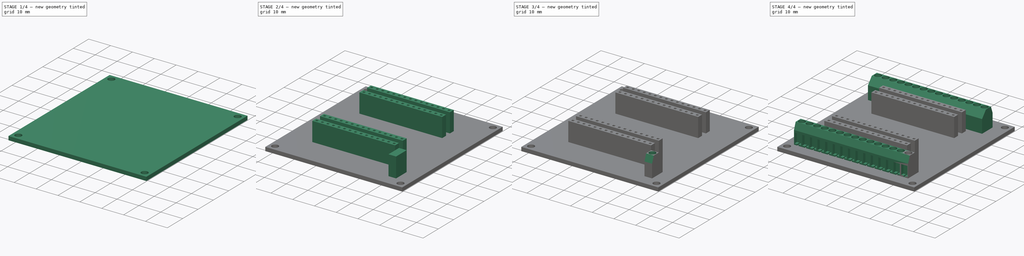
[diagram: build sequence overview — one tinted view per stage of 4, left to right]
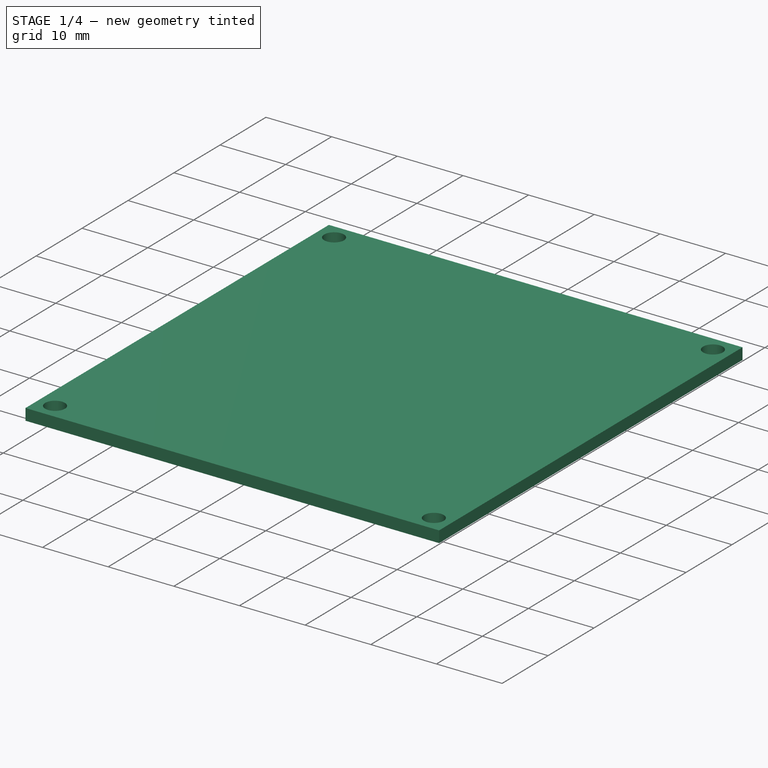
[diagram: stage 1 of 4 — iso view after this stage's code; geometry added in this stage tinted green]
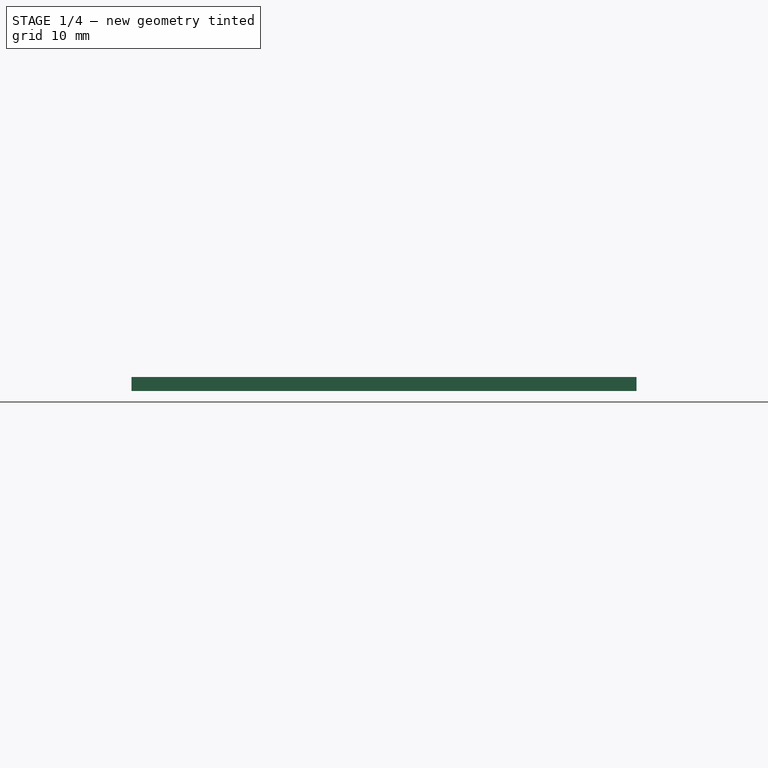
[diagram: stage 1 of 4 — front view after this stage's code; geometry added in this stage tinted green]
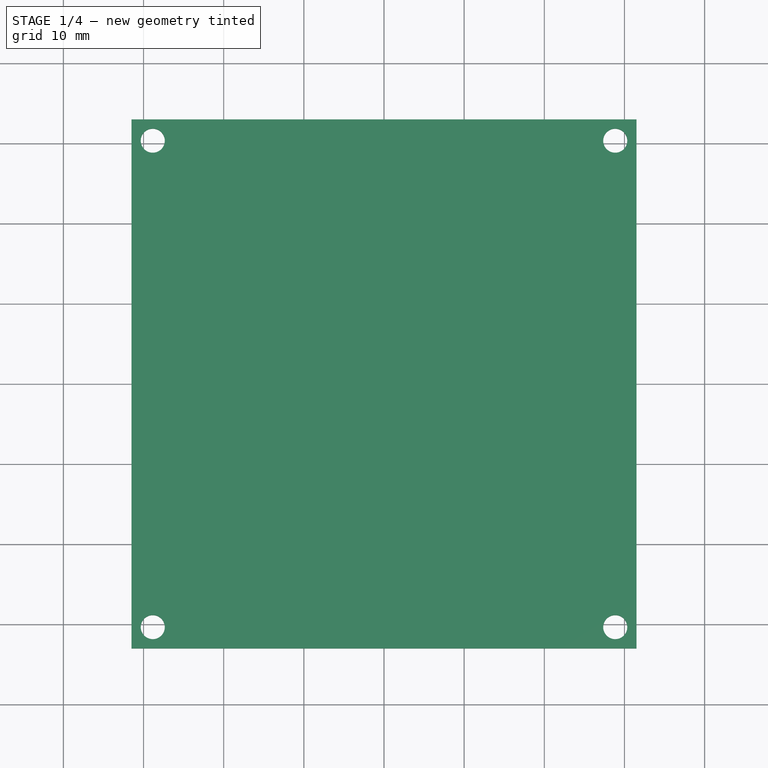
[diagram: stage 1 of 4 — top view after this stage's code; geometry added in this stage tinted green]
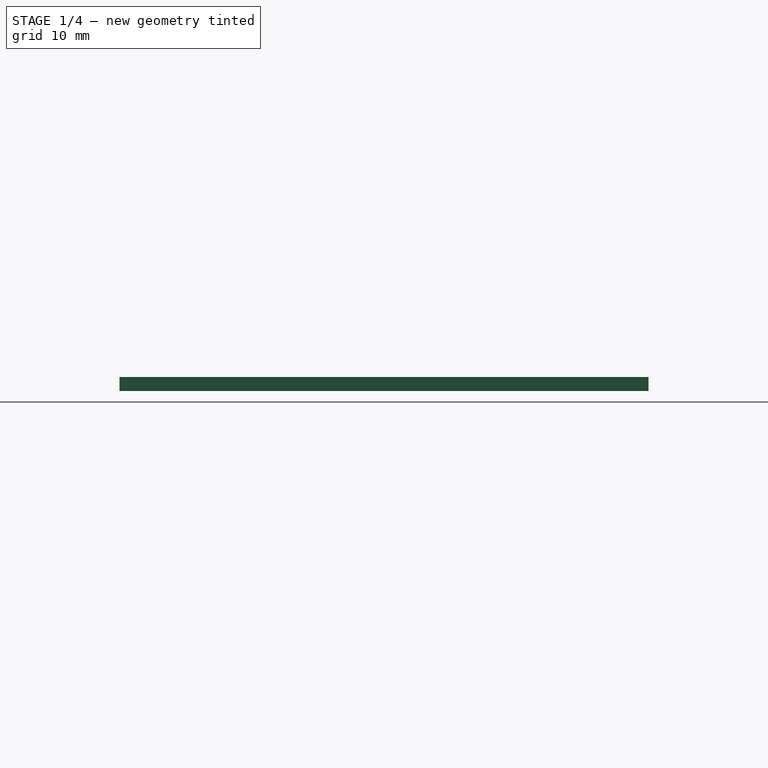
[diagram: stage 1 of 4 — right view after this stage's code; geometry added in this stage tinted green]
FCSTD DOCUMENT  (FreeCAD 1.0R39109 (Git))
Label: esp32_adapter
License: All rights reserved
LicenseURL: http://en.wikipedia.org/wiki/All_rights_reserved
objects: Sketcher::SketchObject×8, PartDesign::Pocket×5, PartDesign::Pad×3, PartDesign::LinearPattern×3, PartDesign::Mirrored×2, PartDesign::MultiTransform×2, PartDesign::Body×1
note: 55 computed .brp shape members not serialized (recipe doc carries the construction recipe); baked Part::Feature solids carry a one-line shape summary decoded from their .brp

FEATURE [Sketcher::SketchObject] Sketch
  ArcFitTolerance = 1e-06
  AttachmentSupport = -> [XY_Plane]
  FullyConstrained = true
  MakeInternals = false
  MapMode = 5
  sketch-geometry (5):
    g0: LineSegment StartX=-31.5 StartY=33 StartZ=0 EndX=-31.5 EndY=-33 EndZ=0
    g1: LineSegment StartX=-31.5 StartY=-33 StartZ=0 EndX=31.5 EndY=-33 EndZ=0
    g2: LineSegment StartX=31.5 StartY=-33 StartZ=0 EndX=31.5 EndY=33 EndZ=0
    g3: LineSegment StartX=31.5 StartY=33 StartZ=0 EndX=-31.5 EndY=33 EndZ=0
    g4: GeomPoint [constr] X=0 Y=0 Z=0
  constraints (12):
    c: Coincident(g0,g1)
    c: Coincident(g1,g2)
    c: Coincident(g2,g3)
    c: Coincident(g3,g0)
    c: Vertical(g0)
    c: Vertical(g2)
    c: Horizontal(g1)
    c: Horizontal(g3)
    c: Symmetric(g2,g0,g4)
    c: Coincident(g4,g-1)
    c: DistanceY(g2,g2) = 66
    c: DistanceX(g1,g1) = 63
FEATURE [PartDesign::Pad] Pad  label="PCBPad"
  Direction = (0,0,1)
  Length = 1.75
  Length2 = 10
  Profile = -> Sketch
  ReferenceAxis = -> Sketch [N_Axis]
  Refine = true
  Suppressed = false
  Type = 0
FEATURE [Sketcher::SketchObject] Sketch001
  ArcFitTolerance = 1e-06
  AttachmentSupport = -> [Pad]
  FullyConstrained = true
  MakeInternals = false
  MapMode = 5
  Placement = pos=(0,0,1.75) rot=(0,0,1;0rad)
  sketch-geometry (8):
    g0: Circle CenterX=-28.85 CenterY=30.35 CenterZ=0 NormalX=0 NormalY=0 NormalZ=1 AngleXU=0 Radius=1.5
    g1: Circle CenterX=28.85 CenterY=30.35 CenterZ=0 NormalX=0 NormalY=0 NormalZ=1 AngleXU=0 Radius=1.5
    g2: Circle CenterX=-28.85 CenterY=-30.35 CenterZ=0 NormalX=0 NormalY=0 NormalZ=1 AngleXU=0 Radius=1.5
    g3: Circle CenterX=28.85 CenterY=-30.35 CenterZ=0 NormalX=0 NormalY=0 NormalZ=1 AngleXU=0 Radius=1.5
    g4: GeomPoint X=27.35 Y=30.35 Z=0
    g5: GeomPoint X=-27.35 Y=30.35 Z=0
    g6: GeomPoint X=28.85 Y=-28.85 Z=0
    g7: GeomPoint X=28.85 Y=28.85 Z=0
  constraints (18):
    c: Equal(g0,g2)
    c: Equal(g2,g1)
    c: Equal(g1,g3)
    c: Radius(g3) = 1.5
    c: Symmetric(g2,g3,g-2)
    c: Symmetric(g2,g0,g-1)
    c: Horizontal(g0,g1)
    c: Vertical(g3,g1)
    c: PointOnObject(g4,g1)
    c: PointOnObject(g5,g0)
    c: Horizontal(g0,g5)
    c: Horizontal(g5,g4)
    c: DistanceX(g5,g4) = 54.7
    c: PointOnObject(g6,g3)
    c: PointOnObject(g7,g1)
    c: Vertical(g7,g6)
    c: Vertical(g6,g3)
    c: DistanceY(g6,g7) = 57.7
FEATURE [PartDesign::Pocket] Pocket  label="ScrewPads"
  BaseFeature = -> Pad
  Direction = (0,0,-1)
  Length = 0
  Length2 = 5
  Profile = -> Sketch001
  ReferenceAxis = -> Sketch001 [N_Axis]
  Refine = true
  Suppressed = false
  Type = 1
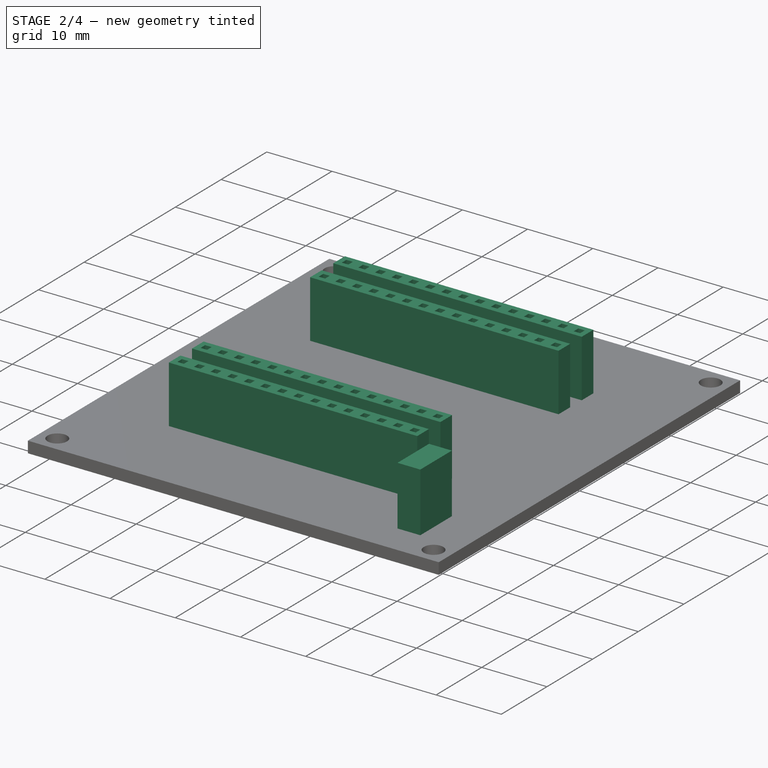
[diagram: stage 2 of 4 — iso view after this stage's code; geometry added in this stage tinted green]
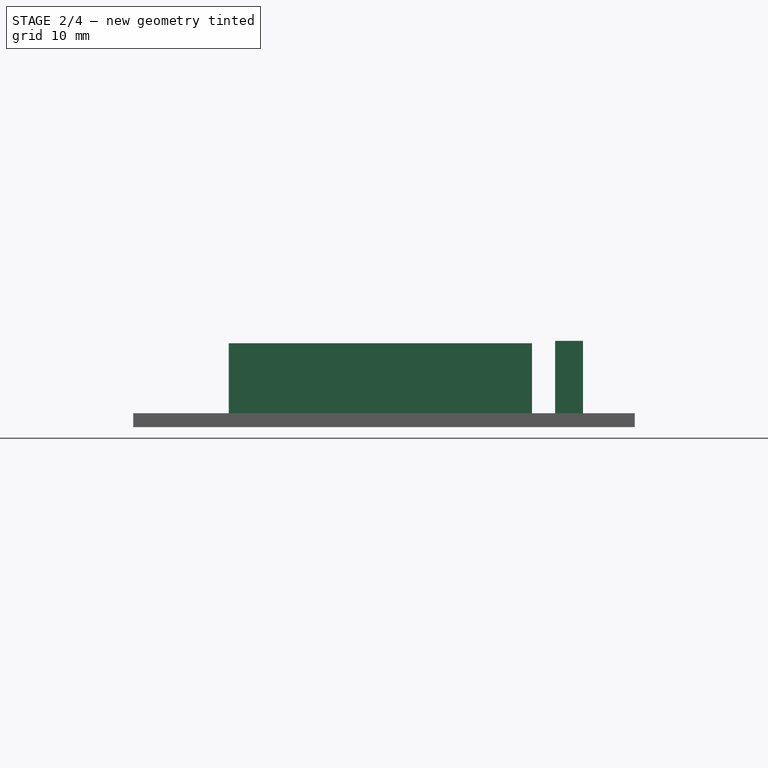
[diagram: stage 2 of 4 — front view after this stage's code; geometry added in this stage tinted green]
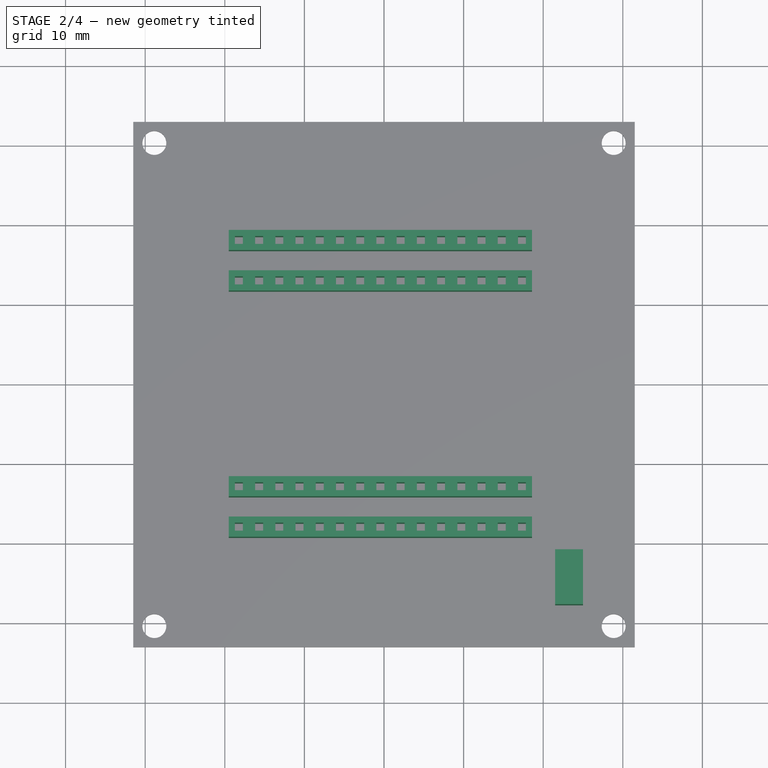
[diagram: stage 2 of 4 — top view after this stage's code; geometry added in this stage tinted green]
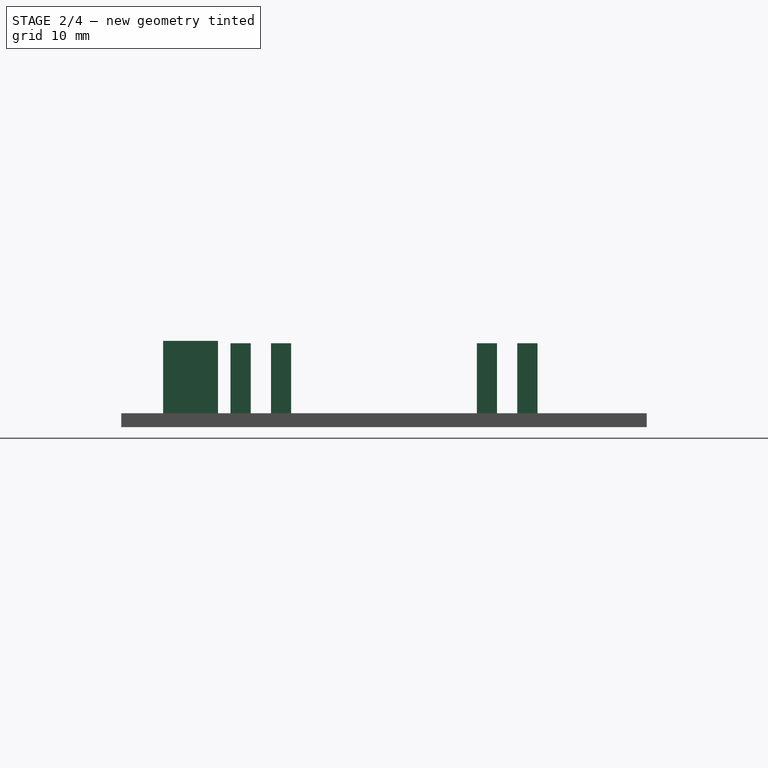
[diagram: stage 2 of 4 — right view after this stage's code; geometry added in this stage tinted green]
FEATURE [Sketcher::SketchObject] Sketch002
  ArcFitTolerance = 1e-06
  AttachmentSupport = -> [Pocket]
  ExternalGeometry = -> [Pocket]
  FullyConstrained = true
  MakeInternals = false
  MapMode = 5
  Placement = pos=(0,0,1.75) rot=(0,0,1;0rad)
  sketch-geometry (10):
    g0: LineSegment StartX=-19.5 StartY=14.2 StartZ=0 EndX=-19.5 EndY=11.66 EndZ=0
    g1: LineSegment StartX=-19.5 StartY=11.66 StartZ=0 EndX=-16.96 EndY=11.66 EndZ=0
    g2: LineSegment StartX=-16.96 StartY=11.66 StartZ=0 EndX=-16.96 EndY=14.2 EndZ=0
    g3: LineSegment StartX=-16.96 StartY=14.2 StartZ=0 EndX=-19.5 EndY=14.2 EndZ=0
    g4: GeomPoint [constr] X=-18.23 Y=12.93 Z=0
    g5: LineSegment StartX=-18.73 StartY=13.43 StartZ=0 EndX=-18.73 EndY=12.43 EndZ=0
    g6: LineSegment StartX=-18.73 StartY=12.43 StartZ=0 EndX=-17.73 EndY=12.43 EndZ=0
    g7: LineSegment StartX=-17.73 StartY=12.43 StartZ=0 EndX=-17.73 EndY=13.43 EndZ=0
    g8: LineSegment StartX=-17.73 StartY=13.43 StartZ=0 EndX=-18.73 EndY=13.43 EndZ=0
    g9: GeomPoint [constr] X=-18.23 Y=12.93 Z=0
  constraints (25):
    c: Coincident(g0,g1)
    c: Coincident(g1,g2)
    c: Coincident(g2,g3)
    c: Coincident(g3,g0)
    c: Vertical(g0)
    c: Vertical(g2)
    c: Horizontal(g1)
    c: Horizontal(g3)
    c: Symmetric(g2,g0,g4)
    c: Coincident(g5,g6)
    c: Coincident(g6,g7)
    c: Coincident(g7,g8)
    c: Coincident(g8,g5)
    c: Vertical(g5)
    c: Vertical(g7)
    c: Horizontal(g6)
    c: Horizontal(g8)
    c: Symmetric(g7,g5,g9)
    c: Coincident(g9,g4)
    c: Equal(g2,g3)
    c: Equal(g7,g8)
    c: DistanceY(g2,g2) = 2.54
    c: DistanceY(g7,g7) = 1
    c: DistanceX(g-3,g0) = 12
    c: DistanceY(g0,g-3) = 18.8
FEATURE [PartDesign::Pad] Pad001  label="GPIOConnPad"
  BaseFeature = -> Pocket
  Direction = (0,0,1)
  Length = 8.8
  Length2 = 10
  Profile = -> Sketch002
  ReferenceAxis = -> Sketch002 [N_Axis]
  Refine = true
  Suppressed = false
  Type = 0
FEATURE [PartDesign::LinearPattern] LinearPattern
  Direction = -> X_Axis
  Length = 35.56
  Mode = 1
  Occurrences = 15
  Offset = 2.54
  Refine = true
  Suppressed = false
  TransformMode = 0
FEATURE [PartDesign::LinearPattern] LinearPattern001
  Direction = -> Y_Axis
  Length = 5.08
  Mode = 1
  Occurrences = 2
  Offset = 5.08
  Refine = true
  Suppressed = false
  TransformMode = 0
FEATURE [PartDesign::Mirrored] Mirrored
  MirrorPlane = -> XZ_Plane
  Refine = true
  Suppressed = false
  TransformMode = 0
FEATURE [PartDesign::MultiTransform] MultiTransform  label="GPIOConnPattern"
  BaseFeature = -> Pad001
  Originals = -> [Pad001]
  Refine = true
  Suppressed = false
  TransformMode = 0
  Transformations = -> [LinearPattern,LinearPattern001,Mirrored]
FEATURE [Sketcher::SketchObject] Sketch003
  ArcFitTolerance = 1e-06
  AttachmentSupport = -> [MultiTransform]
  ExternalGeometry = -> [MultiTransform]
  FullyConstrained = true
  MakeInternals = false
  MapMode = 5
  Placement = pos=(0,0,1.75) rot=(0,0,1;0rad)
  sketch-geometry (5):
    g0: LineSegment StartX=21.5 StartY=-20.85 StartZ=0 EndX=21.5 EndY=-27.75 EndZ=0
    g1: LineSegment StartX=21.5 StartY=-27.75 StartZ=0 EndX=25 EndY=-27.75 EndZ=0
    g2: LineSegment StartX=25 StartY=-27.75 StartZ=0 EndX=25 EndY=-20.85 EndZ=0
    g3: LineSegment StartX=25 StartY=-20.85 StartZ=0 EndX=21.5 EndY=-20.85 EndZ=0
    g4: GeomPoint [constr] X=23.25 Y=-24.3 Z=0
  constraints (13):
    c: Coincident(g0,g1)
    c: Coincident(g1,g2)
    c: Coincident(g2,g3)
    c: Coincident(g3,g0)
    c: Vertical(g0)
    c: Vertical(g2)
    c: Horizontal(g1)
    c: Horizontal(g3)
    c: Symmetric(g2,g0,g4)
    c: DistanceY(g2,g2) = 6.9
    c: DistanceX(g1,g1) = 3.5
    c: DistanceX(g1,g-3) = 6.5
    c: DistanceY(g-3,g1) = 5.25
FEATURE [PartDesign::Pad] Pad002  label="ConnPad"
  BaseFeature = -> MultiTransform
  Direction = (0,0,1)
  Length = 9.1
  Length2 = 10
  Profile = -> Sketch003
  ReferenceAxis = -> Sketch003 [N_Axis]
  Refine = true
  Suppressed = false
  Type = 0
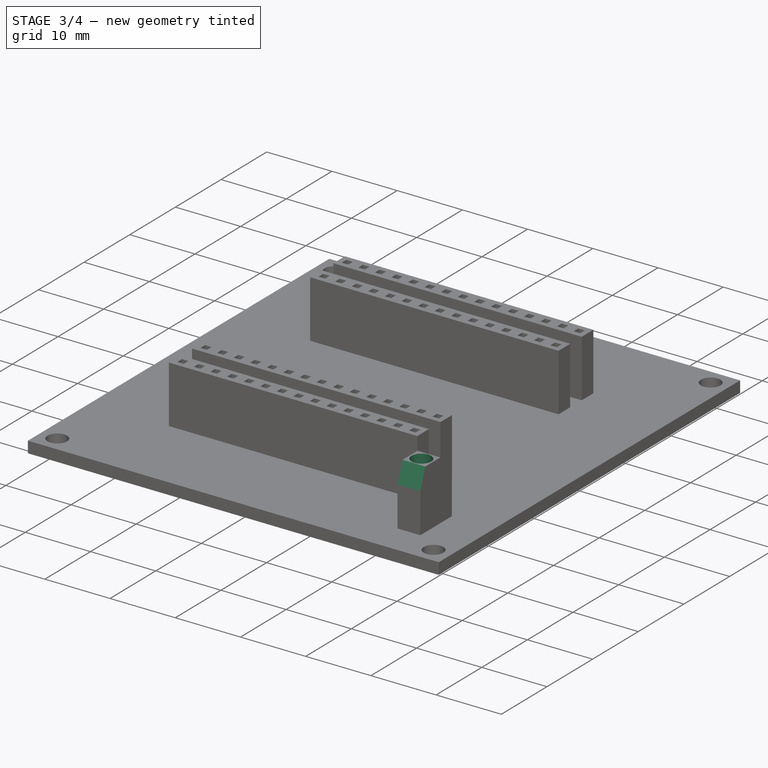
[diagram: stage 3 of 4 — iso view after this stage's code; geometry added in this stage tinted green]
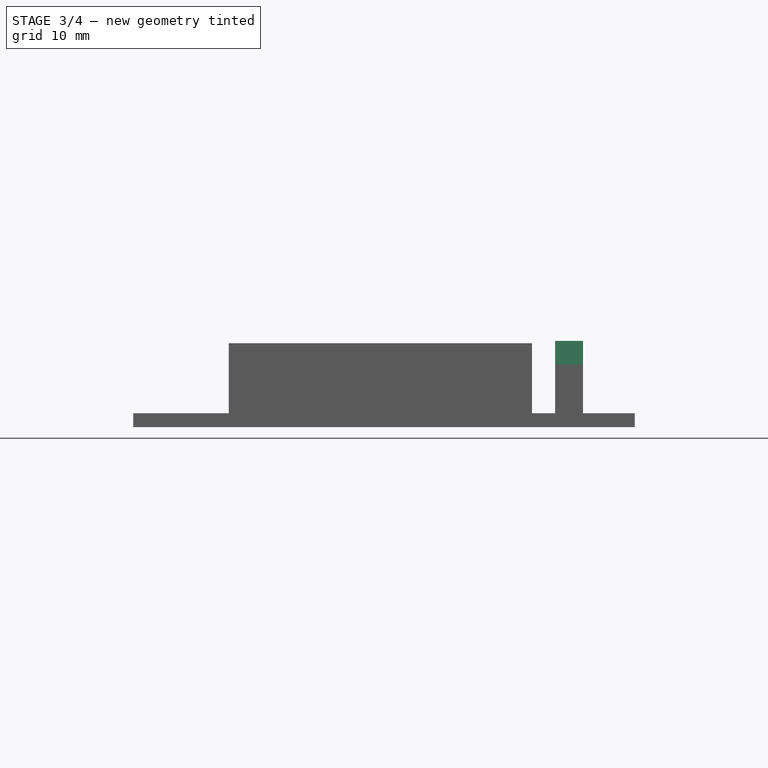
[diagram: stage 3 of 4 — front view after this stage's code; geometry added in this stage tinted green]
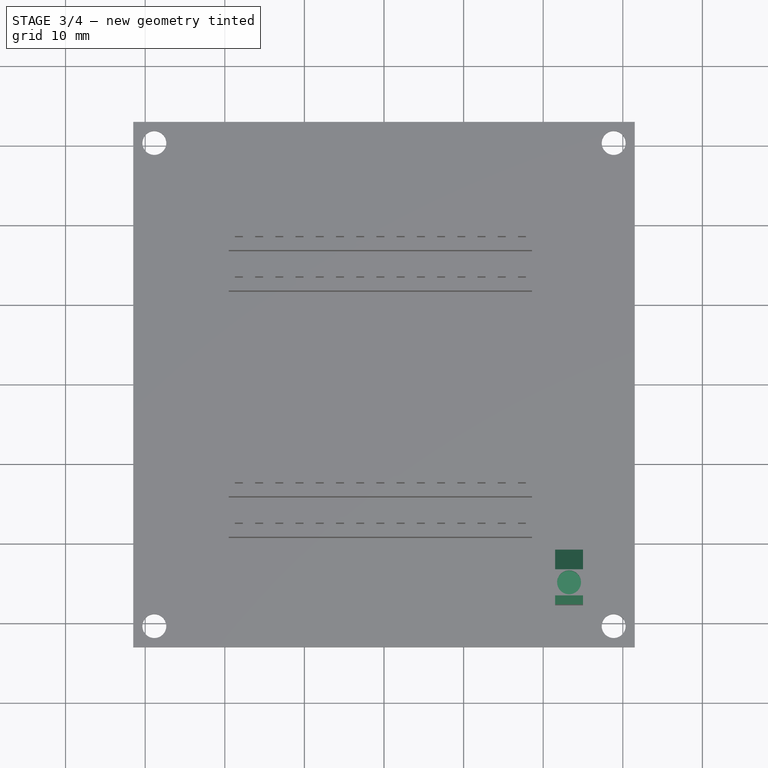
[diagram: stage 3 of 4 — top view after this stage's code; geometry added in this stage tinted green]
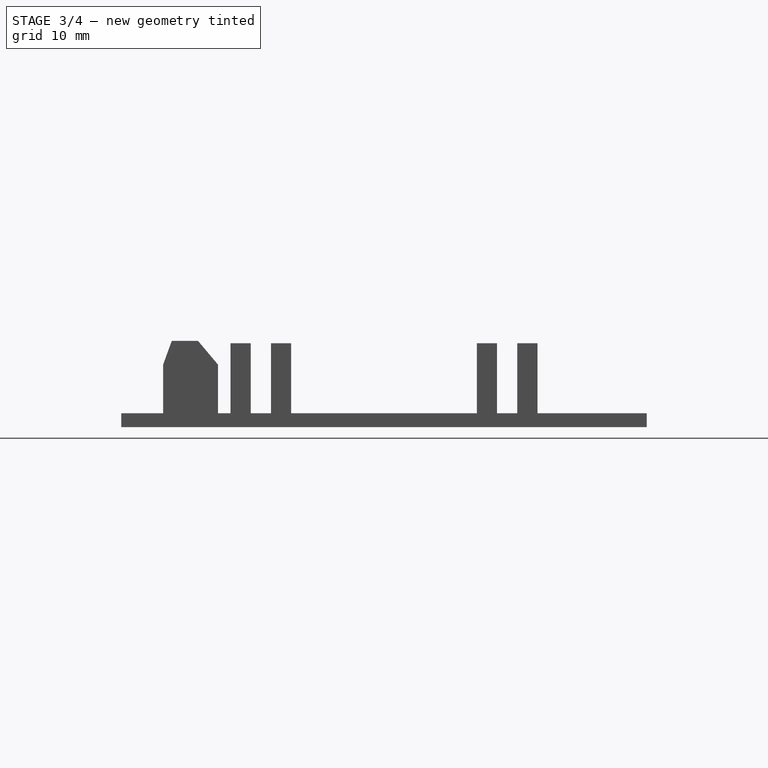
[diagram: stage 3 of 4 — right view after this stage's code; geometry added in this stage tinted green]
FEATURE [Sketcher::SketchObject] Sketch004
  ArcFitTolerance = 1e-06
  AttachmentSupport = -> [Pad002]
  ExternalGeometry = -> [Pad002]
  FullyConstrained = true
  MakeInternals = false
  MapMode = 5
  Placement = pos=(25,0,0) rot=(0.57735,0.57735,0.57735;2.0944rad)
  sketch-geometry (6):
    g0: LineSegment StartX=-27.75 StartY=7.85 StartZ=0 EndX=-27.75 EndY=10.85 EndZ=0
    g1: LineSegment StartX=-27.75 StartY=10.85 StartZ=0 EndX=-26.6581 EndY=10.85 EndZ=0
    g2: LineSegment StartX=-26.6581 StartY=10.85 StartZ=0 EndX=-27.75 EndY=7.85 EndZ=0
    g3: LineSegment StartX=-23.3673 StartY=10.85 StartZ=0 EndX=-20.85 EndY=10.85 EndZ=0
    g4: LineSegment StartX=-20.85 StartY=10.85 StartZ=0 EndX=-20.85 EndY=7.85 EndZ=0
    g5: LineSegment StartX=-20.85 StartY=7.85 StartZ=0 EndX=-23.3673 EndY=10.85 EndZ=0
  constraints (17):
    c: Coincident(g0,g-5)
    c: Coincident(g0,g1)
    c: PointOnObject(g1,g-5)
    c: Coincident(g1,g2)
    c: Coincident(g2,g0)
    c: PointOnObject(g3,g-5)
    c: Coincident(g3,g-5)
    c: Coincident(g3,g4)
    c: Coincident(g4,g5)
    c: Coincident(g5,g3)
    c: Angle(g2,g0) = 0.349066
    c: Angle(g4,g5) = 0.698132
    c: Vertical(g4)
    c: Vertical(g0)
    c: DistanceY(g0,g0) = 3
    c: Horizontal(g4,g0)
    c: DistanceX(g1,g3) = 3.29079
FEATURE [PartDesign::Pocket] Pocket001  label="ConnCountourPocket"
  BaseFeature = -> Pad002
  Direction = (-1,0,0)
  Length = 0
  Length2 = 5
  Profile = -> Sketch004
  ReferenceAxis = -> Sketch004 [N_Axis]
  Refine = true
  Suppressed = false
  Type = 1
FEATURE [Sketcher::SketchObject] Sketch005
  ArcFitTolerance = 1e-06
  AttachmentSupport = -> [Pocket001]
  ExternalGeometry = -> [Pocket001]
  FullyConstrained = true
  MakeInternals = false
  MapMode = 5
  Placement = pos=(0,0,10.85) rot=(0,0,1;0rad)
  sketch-geometry (3):
    g0: Circle CenterX=23.25 CenterY=-25.0127 CenterZ=0 NormalX=0 NormalY=0 NormalZ=1 AngleXU=0 Radius=1.5
    g1: GeomPoint X=23.25 Y=-23.3673 Z=0
    g2: GeomPoint X=25 Y=-25.0127 Z=0
  constraints (5):
    c: Symmetric(g-4,g-4,g1)
    c: Symmetric(g-3,g-3,g2)
    c: Horizontal(g2,g0)
    c: Vertical(g1,g0)
    c: Radius(g0) = 1.5
FEATURE [PartDesign::Pocket] Pocket002  label="ConnScrewPocket"
  BaseFeature = -> Pocket001
  Direction = (0,0,-1)
  Length = 2
  Length2 = 5
  Profile = -> Sketch005
  ReferenceAxis = -> Sketch005 [N_Axis]
  Refine = true
  Suppressed = false
  Type = 0
FEATURE [Sketcher::SketchObject] Sketch006
  ArcFitTolerance = 1e-06
  AttachmentSupport = -> [Pocket002]
  ExternalGeometry = -> [Pocket002]
  FullyConstrained = true
  MakeInternals = false
  MapMode = 5
  Placement = pos=(0,0,8.85) rot=(0,0,1;0rad)
  sketch-geometry (5):
    g0: LineSegment StartX=22.25 StartY=-24.7627 StartZ=0 EndX=22.25 EndY=-25.2627 EndZ=0
    g1: LineSegment StartX=22.25 StartY=-25.2627 StartZ=0 EndX=24.25 EndY=-25.2627 EndZ=0
    g2: LineSegment StartX=24.25 StartY=-25.2627 StartZ=0 EndX=24.25 EndY=-24.7627 EndZ=0
    g3: LineSegment StartX=24.25 StartY=-24.7627 StartZ=0 EndX=22.25 EndY=-24.7627 EndZ=0
    g4: GeomPoint [constr] X=23.25 Y=-25.0127 Z=0
  constraints (12):
    c: Coincident(g0,g1)
    c: Coincident(g1,g2)
    c: Coincident(g2,g3)
    c: Coincident(g3,g0)
    c: Vertical(g0)
    c: Vertical(g2)
    c: Horizontal(g1)
    c: Horizontal(g3)
    c: Symmetric(g2,g0,g4)
    c: Coincident(g4,g-3)
    c: DistanceY(g2,g2) = 0.5
    c: DistanceX(g3,g3) = 2
FEATURE [PartDesign::Pocket] Pocket003  label="ConnScrew2Pocket"
  BaseFeature = -> Pocket002
  Direction = (0,0,-1)
  Length = 0.25
  Length2 = 5
  Profile = -> Sketch006
  ReferenceAxis = -> Sketch006 [N_Axis]
  Refine = true
  Suppressed = false
  Type = 0
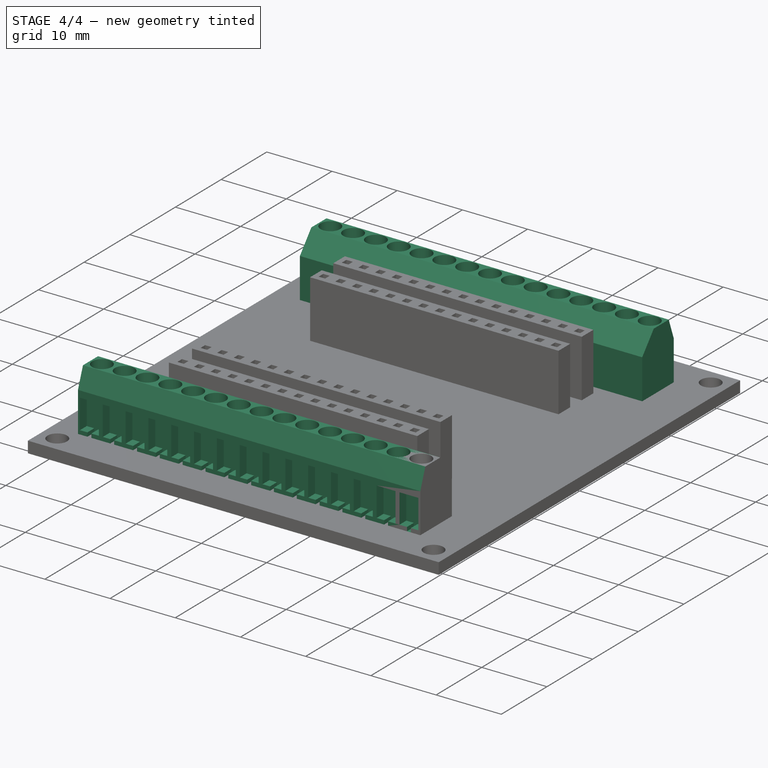
[diagram: stage 4 of 4 — iso view after this stage's code; geometry added in this stage tinted green]
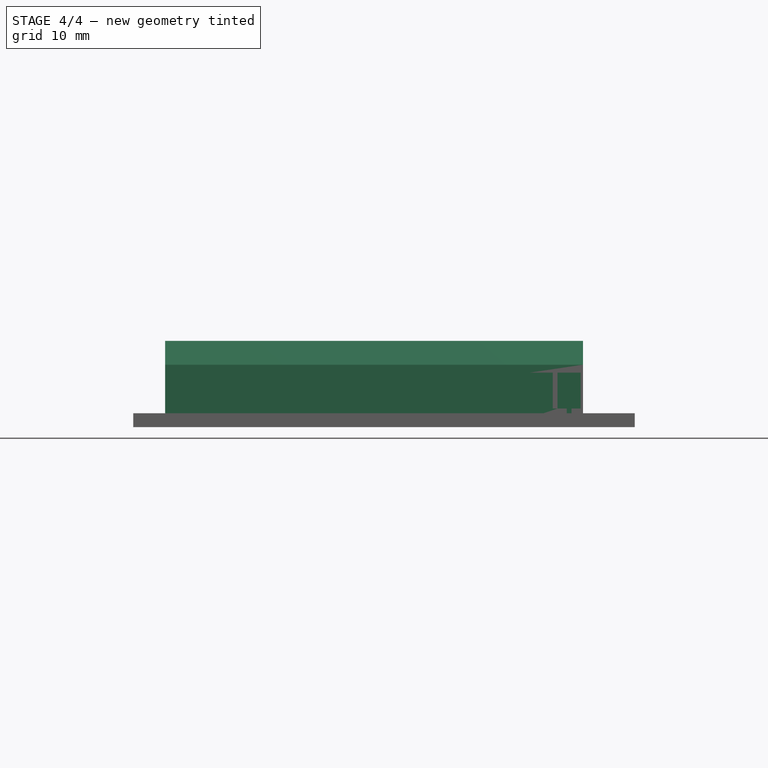
[diagram: stage 4 of 4 — front view after this stage's code; geometry added in this stage tinted green]
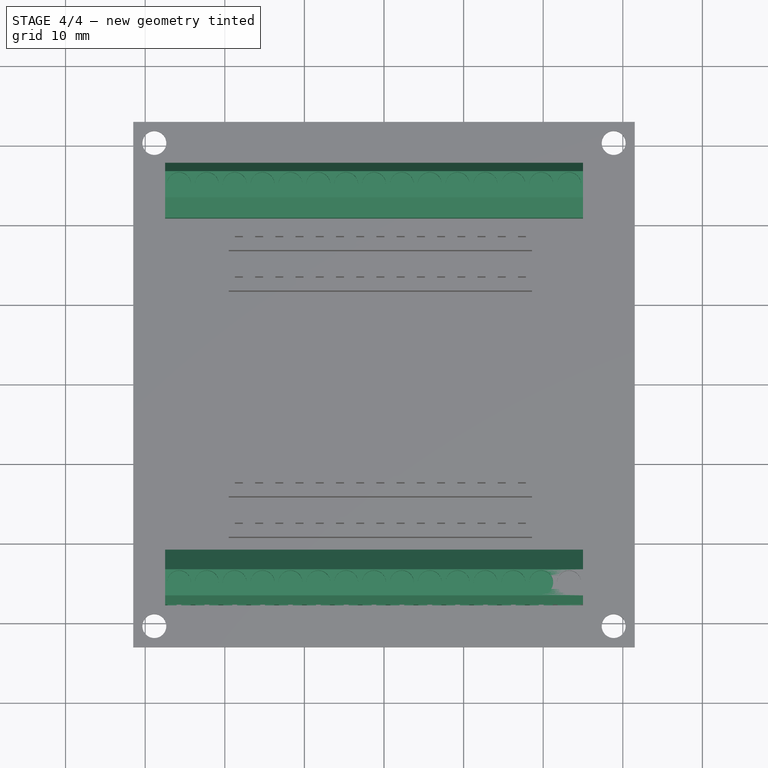
[diagram: stage 4 of 4 — top view after this stage's code; geometry added in this stage tinted green]
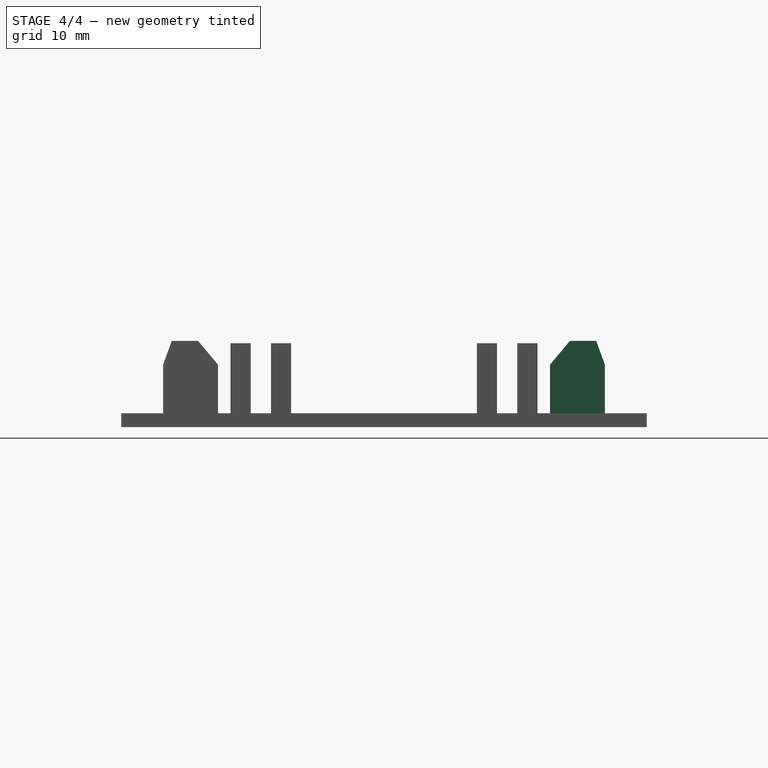
[diagram: stage 4 of 4 — right view after this stage's code; geometry added in this stage tinted green]
FEATURE [Sketcher::SketchObject] Sketch007
  ArcFitTolerance = 1e-06
  AttachmentSupport = -> [Pocket003]
  ExternalGeometry = -> [Pocket003]
  FullyConstrained = true
  MakeInternals = false
  MapMode = 5
  Placement = pos=(0,-27.75,0) rot=(1,0,0;1.5708rad)
  sketch-geometry (10):
    g0: LineSegment StartX=21.8 StartY=6.85 StartZ=0 EndX=24.7 EndY=6.85 EndZ=0
    g1: LineSegment StartX=24.7 StartY=6.85 StartZ=0 EndX=24.7 EndY=2.35 EndZ=0
    g2: LineSegment StartX=24.7 StartY=2.35 StartZ=0 EndX=23.55 EndY=2.35 EndZ=0
    g3: LineSegment StartX=23.55 StartY=2.35 StartZ=0 EndX=23.55 EndY=1.75 EndZ=0
    g4: LineSegment StartX=23.55 StartY=1.75 StartZ=0 EndX=22.95 EndY=1.75 EndZ=0
    g5: LineSegment StartX=22.95 StartY=1.75 StartZ=0 EndX=22.95 EndY=2.35 EndZ=0
    g6: LineSegment StartX=22.95 StartY=2.35 StartZ=0 EndX=21.8 EndY=2.35 EndZ=0
    g7: LineSegment StartX=21.8 StartY=2.35 StartZ=0 EndX=21.8 EndY=6.85 EndZ=0
    g8: LineSegment [constr] StartX=24.7 StartY=2.35 StartZ=0 EndX=25 EndY=2.35 EndZ=0
    g9: LineSegment [constr] StartX=21.8 StartY=2.35 StartZ=0 EndX=21.5 EndY=2.35 EndZ=0
  constraints (30):
    c: Horizontal(g0)
    c: Coincident(g0,g1)
    c: Vertical(g1)
    c: Coincident(g1,g2)
    c: Coincident(g2,g3)
    c: Coincident(g3,g4)
    c: Horizontal(g4)
    c: Coincident(g4,g5)
    c: Coincident(g5,g6)
    c: Coincident(g6,g7)
    c: Coincident(g7,g0)
    c: Vertical(g7)
    c: Horizontal(g2)
    c: Horizontal(g6)
    c: Vertical(g5)
    c: Vertical(g3)
    c: Horizontal(g5,g2)
    c: Equal(g6,g2)
    c: Coincident(g8,g1)
    c: PointOnObject(g8,g-4)
    c: Coincident(g9,g6)
    c: PointOnObject(g9,g-3)
    c: Horizontal(g9)
    c: Horizontal(g8)
    c: Equal(g9,g8)
    c: DistanceX(g8,g8) = 0.3
    c: Horizontal(g3,g-4)
    c: DistanceX(g5,g2) = 0.6
    c: DistanceY(g-4,g8) = 0.6
    c: DistanceY(g1,g1) = 4.5
FEATURE [PartDesign::Pocket] Pocket004  label="ConnHolderPocket"
  BaseFeature = -> Pocket003
  Direction = (0,1,-2e-16)
  Length = 1.5
  Length2 = 5
  Profile = -> Sketch007
  ReferenceAxis = -> Sketch007 [N_Axis]
  Refine = true
  Suppressed = false
  Type = 0
FEATURE [PartDesign::LinearPattern] LinearPattern002
  Direction = -> X_Axis
  Length = 49
  Mode = 1
  Occurrences = 15
  Offset = 3.5
  Refine = true
  Reversed = true
  Suppressed = false
  TransformMode = 0
FEATURE [PartDesign::Mirrored] Mirrored001
  MirrorPlane = -> Sketch003 [H_Axis]
  Refine = true
  Suppressed = false
  TransformMode = 0
FEATURE [PartDesign::MultiTransform] MultiTransform001  label="ConnPattern"
  BaseFeature = -> Pocket004
  Originals = -> [Pad002,Pocket001,Pocket002,Pocket003,Pocket004]
  Refine = true
  Suppressed = false
  TransformMode = 0
  Transformations = -> [LinearPattern002,Mirrored001]
FEATURE [PartDesign::Body] Body  label="esp32_adapter"
  AllowCompound = false
  Group = -> [Sketch,Pad,Sketch001,Pocket,Sketch002,Pad001,MultiTransform,LinearPattern,LinearPattern001,Mirrored,Sketch003,Pad002,Sketch004,Pocket001,Sketch005,Pocket002,Sketch006,Pocket003,Sketch007,Pocket004,MultiTransform001,LinearPattern002,Mirrored001]
  Origin = -> Origin
  Tip = -> MultiTransform001
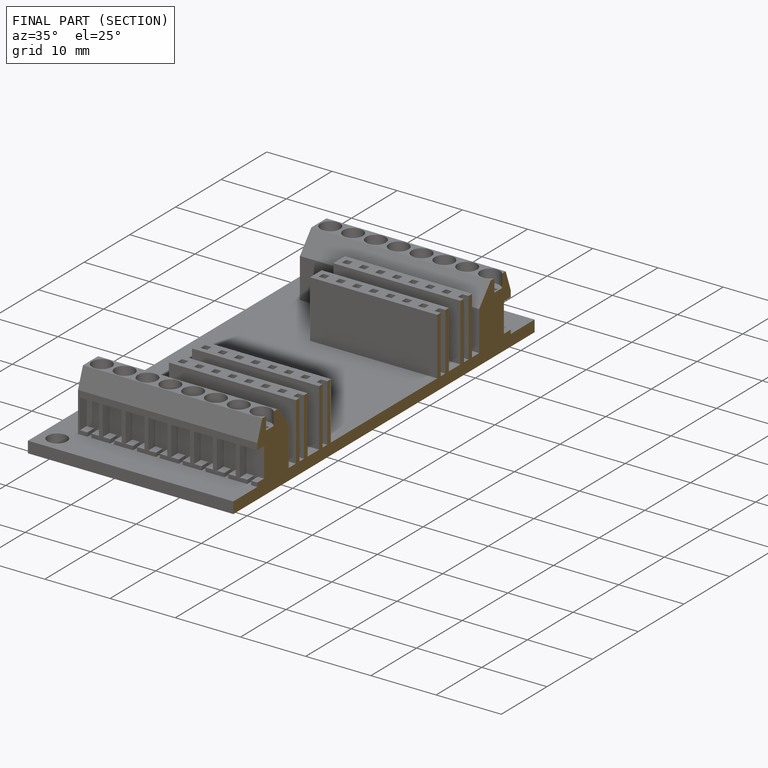
[diagram: finished part — half-section view (interior)]
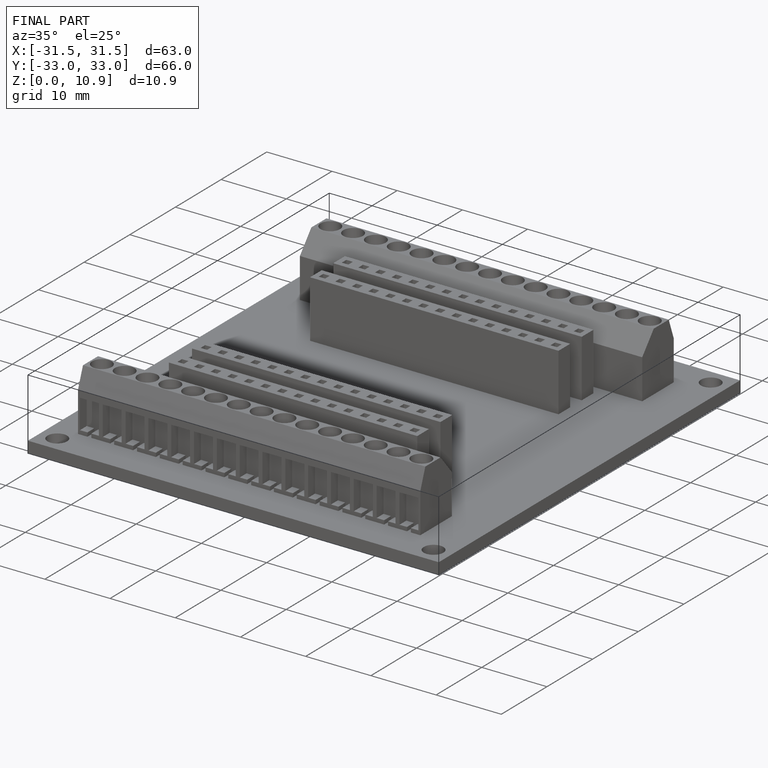
[diagram: finished part — iso view with bounding-box wireframe]
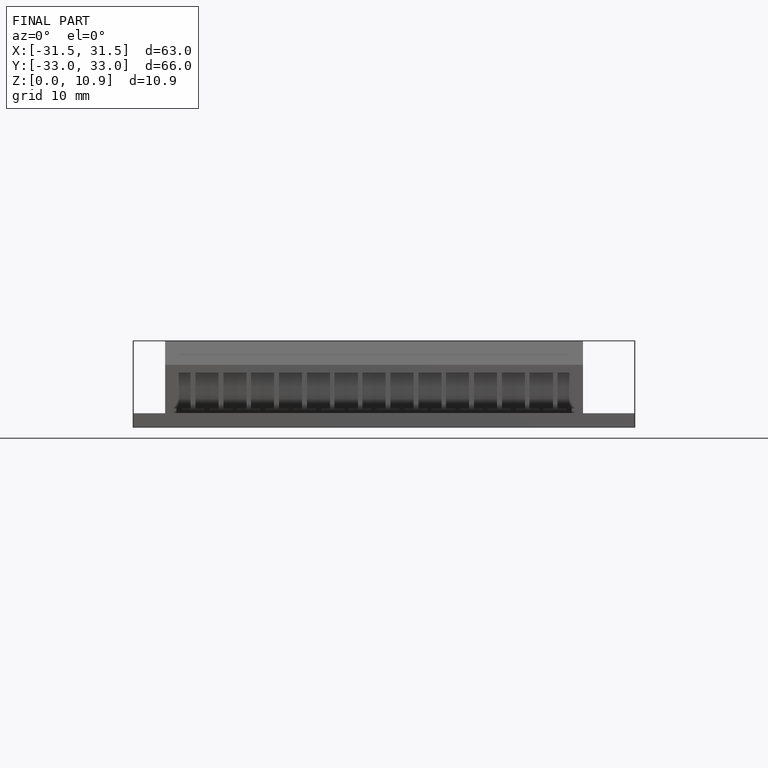
[diagram: finished part — front view with bounding-box wireframe]
